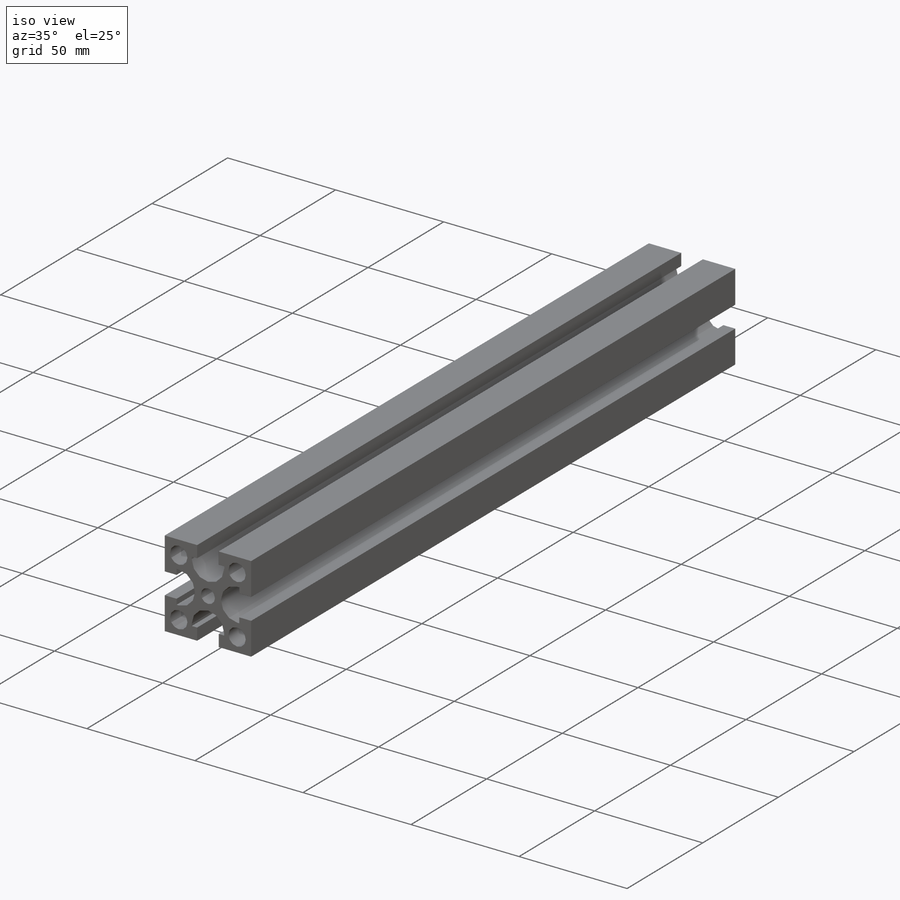
[diagram: iso view]
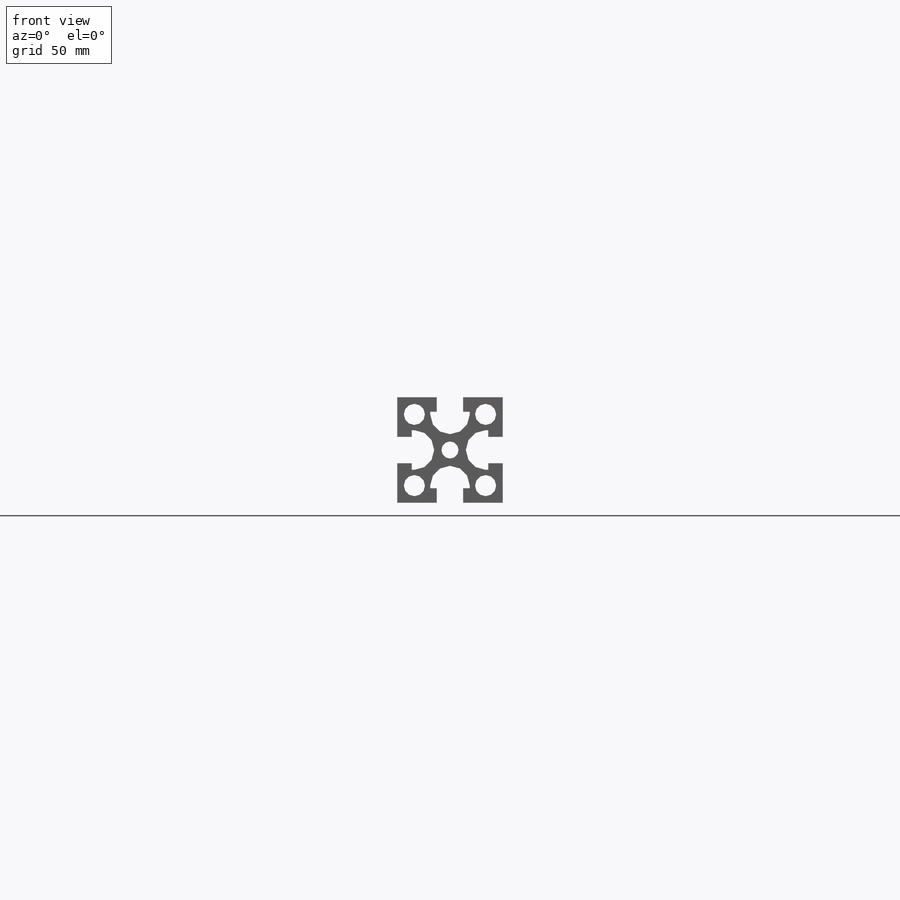
[diagram: front view]
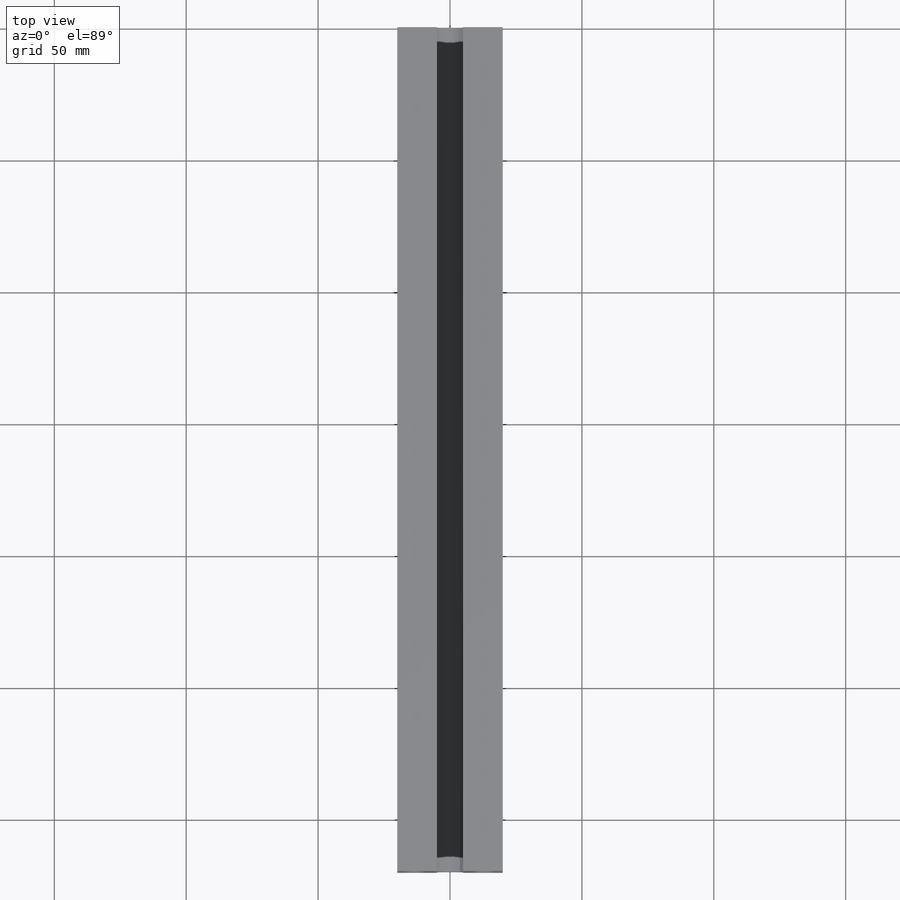
[diagram: top view]
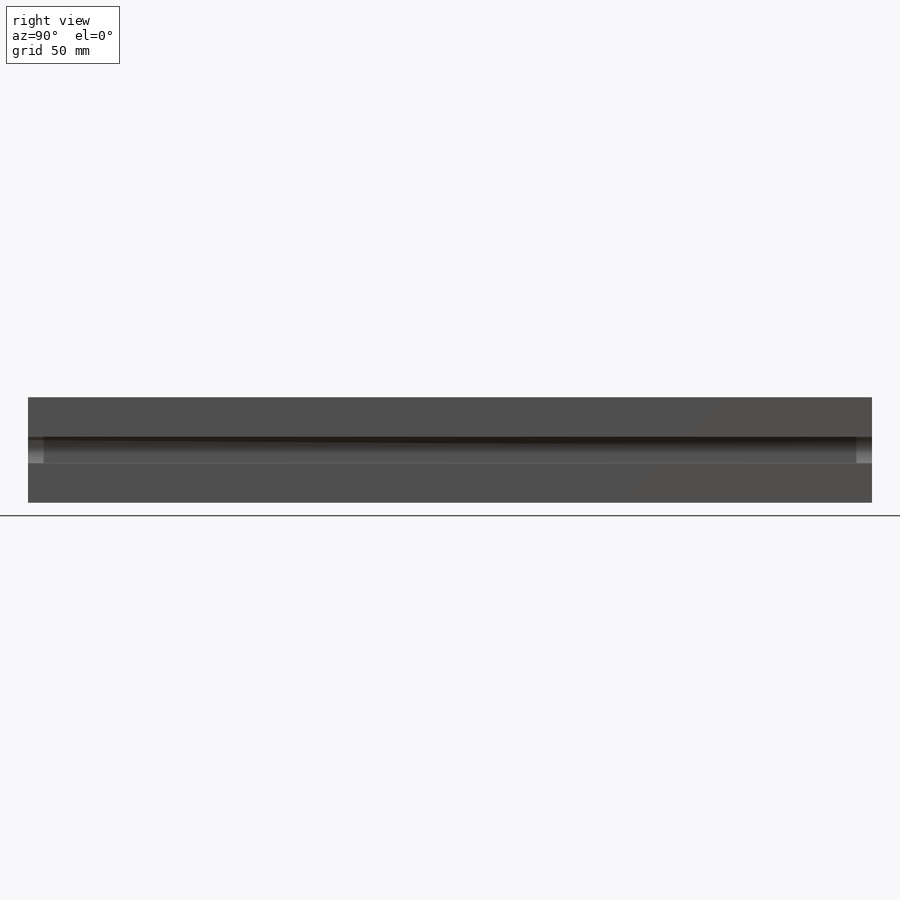
[diagram: right view]
SOLIDWORKS PART (.sldprt)
format: sldprt  version: not decoded by parser v0  size: 271,360 bytes
history: native  units: mm
features: sketch x4, plane x3, material x1, extrude x1, cut_extrude x1, hole x1 (+10 scaffold rows collapsed)
feature tree (21):
  scaffold x10  (default folders/planes/origin — collapsed)
  material  "材質 <未指定>"
  plane  "前基準面"
  plane  "上基準面"
  plane  "右基準面"
  sketch  "草圖1"  dims[D1=40.0mm D2=40.0mm D3=15.0mm D4=15.0mm]
  extrude  "伸長1"  Depth=320mm
  sketch  "草圖2"  dims[c1.D1=5.0mm c1.D2=5.0mm c2.D1=6.5mm c2.D2=8.0mm c2.D5=6.0mm c2.D7=6.0mm c2.D12=6.0mm c2.D11=7.0mm c2.D3=5.0mm c2.D4=5.0mm c3.D5=90.0deg c3.D6=10.0mm c3.D7=2.5mm c3.D8=10.4mm c3.D9=3.25mm c3.D10=5.2mm c3.D11=10.0mm c3.D12=5.5mm c4.D7=12.0mm c4.D12=5.5mm c4.D3=27.0mm c4.D4=27.0mm c4.D5=15.0mm]
  cut_extrude  "除料-伸長1"  [1 undecoded]
  hole  "Ø3.5 (3.5) 直徑孔1"  [1 undecoded]
  sketch  "草圖7"  dims[D1=145.0mm D2=4.0mm D3=15.0mm D4=15.0mm D5=17.0mm]
  sketch  "草圖6"  dims[hole-wizard template sketch: 46 standard entries collapsed; hole parameters kept: c15.鑽孔直徑=3.5mm c15.鑽孔深度=7.5mm c15.D3=~14.816244mm c15.導頭角度=118.0deg]
decode coverage: 5 of 7 modeling features carry decoded parameters
note: ~ marks probable driven/reference dimensions
note: 2 parameter values undecoded
note: suppression state not decoded; provenance and decode notes live in map.json
